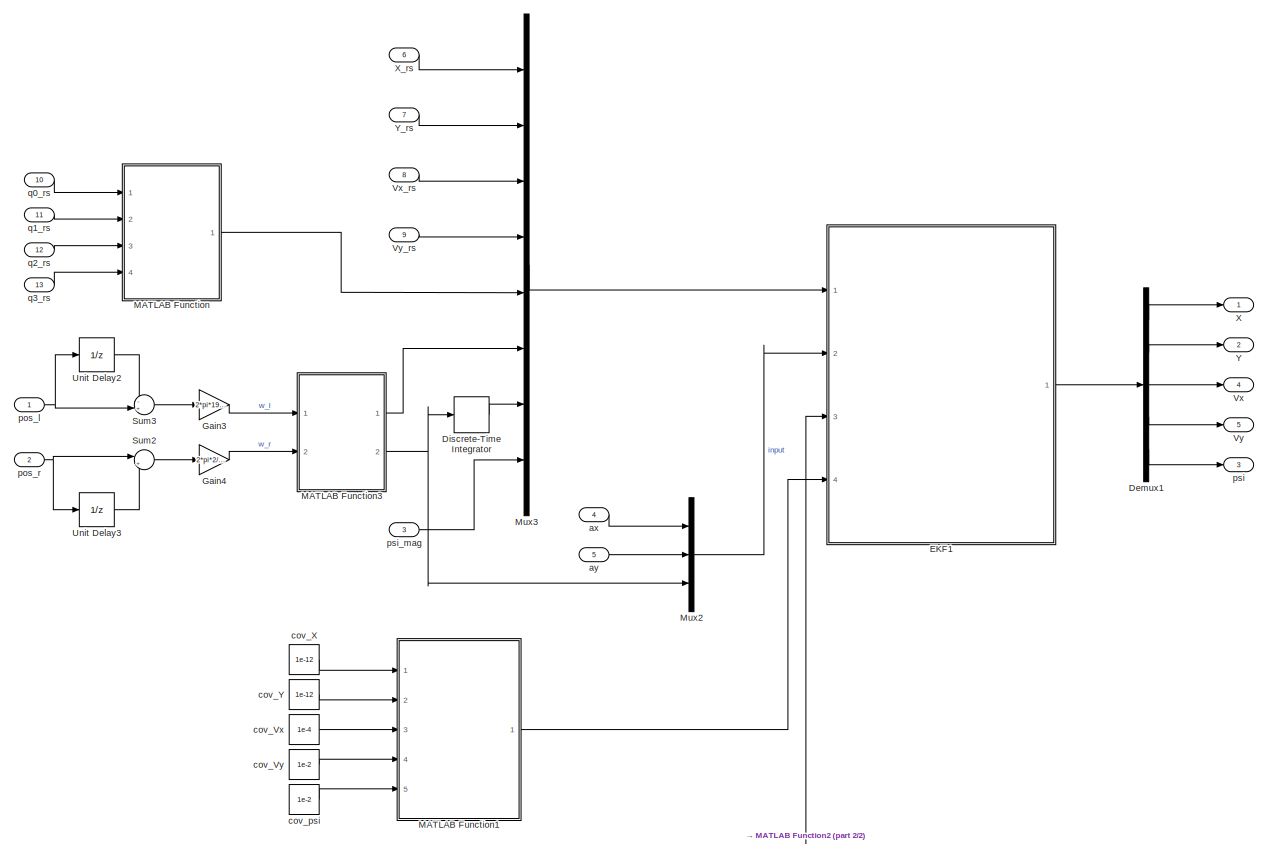
[diagram: root canvas - part 1/2, full width, middle band]
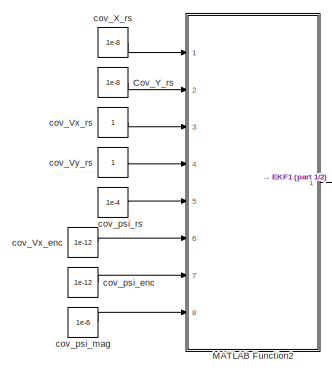
[diagram: root canvas - part 2/2, bottom center region]
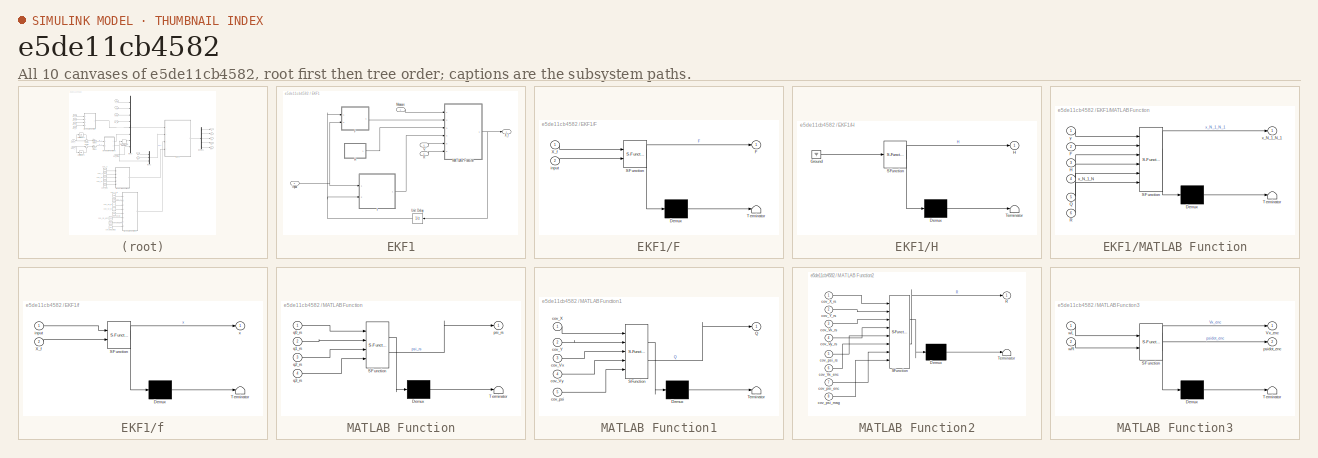
[diagram: thumbnail index - all 10 canvases of the model, root first then tree order]
MODEL slx_e5de11cb4582
KIND model
CONFIG AbsTol = auto
CONFIG EnableMultiTasking = on
CONFIG FixedStep = 0.2
CONFIG MaxStep = auto
CONFIG MinStep = auto
CONFIG RelTol = 1e-3
CONFIG SampleTimeConstraint = Unconstrained
CONFIG Solver = FixedStepDiscrete
CONFIG SolverName = FixedStepDiscrete
CONFIG StartTime = 0.0
CONFIG StopTime = 10.0
BLOCK [Constant] Cov_Y_rs
  Value = 1e-8
BLOCK [Demux] Demux1
  DisplayOption = bar
  Outputs = 5
  Ports = [1, 5]
BLOCK [DiscreteIntegrator] Discrete-Time Integrator
  ICPrevOutput = DiscIntNeverNeededParam
  ICPrevScaledInput = DiscIntNeverNeededParam
  InitialConditionSetting = Auto
  IntegratorMethod = Integration: Backward Euler
  Ports = [1, 1]
  SampleTime = -1
BLOCK [SubSystem] EKF1
  Ports = [4, 1]
  RequestExecContextInheritance = off
BLOCK [SubSystem] EKF1/F
  ErrorFcn = Stateflow.Translate.translate
  PermitHierarchicalResolution = ExplicitOnly
  Ports = [2, 1]
  RequestExecContextInheritance = off
  SFBlockType = MATLAB Function
  TreatAsAtomicUnit = on
BLOCK [Demux] EKF1/F/ Demux 
  DisplayOption = bar
  Outputs = 1
  Ports = [1, 1]
BLOCK [S-Function] EKF1/F/ SFunction 
  EnableBusSupport = on
  FunctionName = sf_sfun
  PortCounts = [2 2]
  Ports = [2, 2]
  SFcnIsStateOwnerBlock = off
  SFunctionDeploymentMode = off
  Tag = Stateflow S-Function Kalman_filter_conv 4
BLOCK [Terminator] EKF1/F/ Terminator 
BLOCK [Outport] EKF1/F/F
  IconDisplay = Port number
  VectorParamsAs1DForOutWhenUnconnected = on
BLOCK [Inport] EKF1/F/X_f
  IconDisplay = Port number
BLOCK [Inport] EKF1/F/input
  IconDisplay = Port number
  Port = 2
BLOCK [SubSystem] EKF1/H
  ErrorFcn = Stateflow.Translate.translate
  PermitHierarchicalResolution = ExplicitOnly
  Ports = [0, 1]
  RequestExecContextInheritance = off
  SFBlockType = MATLAB Function
  TreatAsAtomicUnit = on
BLOCK [Demux] EKF1/H/ Demux 
  DisplayOption = bar
  Outputs = 1
  Ports = [1, 1]
BLOCK [Ground] EKF1/H/ Ground 
BLOCK [S-Function] EKF1/H/ SFunction 
  EnableBusSupport = on
  FunctionName = sf_sfun
  PortCounts = [1 2]
  Ports = [1, 2]
  SFcnIsStateOwnerBlock = off
  SFunctionDeploymentMode = off
  Tag = Stateflow S-Function Kalman_filter_conv 5
BLOCK [Terminator] EKF1/H/ Terminator 
BLOCK [Outport] EKF1/H/H
  IconDisplay = Port number
  VectorParamsAs1DForOutWhenUnconnected = on
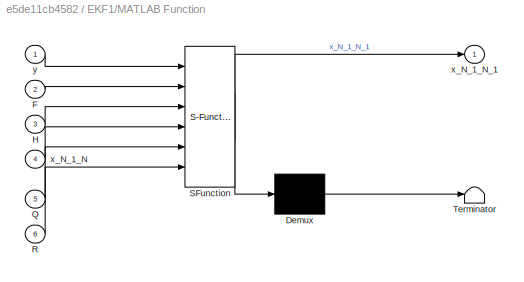
BLOCK [SubSystem] EKF1/MATLAB Function
  ErrorFcn = Stateflow.Translate.translate
  PermitHierarchicalResolution = ExplicitOnly
  Ports = [6, 1]
  RequestExecContextInheritance = off
  SFBlockType = MATLAB Function
  TreatAsAtomicUnit = on
BLOCK [Demux] EKF1/MATLAB Function/ Demux 
  DisplayOption = bar
  Outputs = 1
  Ports = [1, 1]
BLOCK [S-Function] EKF1/MATLAB Function/ SFunction 
  EnableBusSupport = on
  FunctionName = sf_sfun
  PortCounts = [6 2]
  Ports = [6, 2]
  SFcnIsStateOwnerBlock = off
  SFunctionDeploymentMode = off
  Tag = Stateflow S-Function Kalman_filter_conv 6
BLOCK [Terminator] EKF1/MATLAB Function/ Terminator 
BLOCK [Inport] EKF1/MATLAB Function/F
  IconDisplay = Port number
  Port = 2
BLOCK [Inport] EKF1/MATLAB Function/H
  IconDisplay = Port number
  Port = 3
BLOCK [Inport] EKF1/MATLAB Function/Q
  IconDisplay = Port number
  Port = 5
BLOCK [Inport] EKF1/MATLAB Function/R
  IconDisplay = Port number
  Port = 6
BLOCK [Inport] EKF1/MATLAB Function/x_N_1_N
  IconDisplay = Port number
  Port = 4
BLOCK [Outport] EKF1/MATLAB Function/x_N_1_N_1
  IconDisplay = Port number
  VectorParamsAs1DForOutWhenUnconnected = on
BLOCK [Inport] EKF1/MATLAB Function/y
  IconDisplay = Port number
BLOCK [Inport] EKF1/Measure
  IconDisplay = Port number
BLOCK [Inport] EKF1/Q
  IconDisplay = Port number
  Port = 4
BLOCK [Inport] EKF1/R
  IconDisplay = Port number
  Port = 3
BLOCK [UnitDelay] EKF1/Unit Delay
  HasFrameUpgradeWarning = on
  InitialCondition = [0 0 0 0 0]
  SampleTime = -1
BLOCK [Outport] EKF1/X_f
  IconDisplay = Port number
  VectorParamsAs1DForOutWhenUnconnected = on
BLOCK [SubSystem] EKF1/f
  ErrorFcn = Stateflow.Translate.translate
  PermitHierarchicalResolution = ExplicitOnly
  Ports = [2, 1]
  RequestExecContextInheritance = off
  SFBlockType = MATLAB Function
  TreatAsAtomicUnit = on
BLOCK [Demux] EKF1/f/ Demux 
  DisplayOption = bar
  Outputs = 1
  Ports = [1, 1]
BLOCK [S-Function] EKF1/f/ SFunction 
  EnableBusSupport = on
  FunctionName = sf_sfun
  PortCounts = [2 2]
  Ports = [2, 2]
  SFcnIsStateOwnerBlock = off
  SFunctionDeploymentMode = off
  Tag = Stateflow S-Function Kalman_filter_conv 7
BLOCK [Terminator] EKF1/f/ Terminator 
BLOCK [Inport] EKF1/f/X_f
  IconDisplay = Port number
  Port = 2
BLOCK [Inport] EKF1/f/input
  IconDisplay = Port number
BLOCK [Outport] EKF1/f/x
  IconDisplay = Port number
  VectorParamsAs1DForOutWhenUnconnected = on
BLOCK [Inport] EKF1/input
  IconDisplay = Port number
  Port = 2
BLOCK [Gain] Gain3
  Gain = 2*pi*1920*2/360/1920/0.2
  OutDataTypeStr = Inherit: Inherit via internal rule
  ParamDataTypeStr = Inherit: Inherit via internal rule
  SaturateOnIntegerOverflow = off
BLOCK [Gain] Gain4
  Gain = 2*pi*2/360/0.2
  OutDataTypeStr = Inherit: Inherit via internal rule
  ParamDataTypeStr = Inherit: Inherit via internal rule
  SaturateOnIntegerOverflow = off
BLOCK [SubSystem] MATLAB Function
  ErrorFcn = Stateflow.Translate.translate
  PermitHierarchicalResolution = ExplicitOnly
  Ports = [4, 1]
  RequestExecContextInheritance = off
  SFBlockType = MATLAB Function
  TreatAsAtomicUnit = on
BLOCK [Demux] MATLAB Function/ Demux 
  DisplayOption = bar
  Outputs = 1
  Ports = [1, 1]
BLOCK [S-Function] MATLAB Function/ SFunction 
  EnableBusSupport = on
  FunctionName = sf_sfun
  PortCounts = [4 2]
  Ports = [4, 2]
  SFcnIsStateOwnerBlock = off
  SFunctionDeploymentMode = off
  Tag = Stateflow S-Function Kalman_filter_conv 2
BLOCK [Terminator] MATLAB Function/ Terminator 
BLOCK [Outport] MATLAB Function/psi_rs
  IconDisplay = Port number
  VectorParamsAs1DForOutWhenUnconnected = on
BLOCK [Inport] MATLAB Function/q0_rs
  IconDisplay = Port number
BLOCK [Inport] MATLAB Function/q1_rs
  IconDisplay = Port number
  Port = 2
BLOCK [Inport] MATLAB Function/q2_rs
  IconDisplay = Port number
  Port = 3
BLOCK [Inport] MATLAB Function/q3_rs
  IconDisplay = Port number
  Port = 4
BLOCK [SubSystem] MATLAB Function1
  ErrorFcn = Stateflow.Translate.translate
  PermitHierarchicalResolution = ExplicitOnly
  Ports = [5, 1]
  RequestExecContextInheritance = off
  SFBlockType = MATLAB Function
  TreatAsAtomicUnit = on
BLOCK [Demux] MATLAB Function1/ Demux 
  DisplayOption = bar
  Outputs = 1
  Ports = [1, 1]
BLOCK [S-Function] MATLAB Function1/ SFunction 
  EnableBusSupport = on
  FunctionName = sf_sfun
  PortCounts = [5 2]
  Ports = [5, 2]
  SFcnIsStateOwnerBlock = off
  SFunctionDeploymentMode = off
  Tag = Stateflow S-Function Kalman_filter_conv 1
BLOCK [Terminator] MATLAB Function1/ Terminator 
BLOCK [Outport] MATLAB Function1/Q
  IconDisplay = Port number
  VectorParamsAs1DForOutWhenUnconnected = on
BLOCK [Inport] MATLAB Function1/cov_Vx
  IconDisplay = Port number
  Port = 3
BLOCK [Inport] MATLAB Function1/cov_Vy
  IconDisplay = Port number
  Port = 4
BLOCK [Inport] MATLAB Function1/cov_X
  IconDisplay = Port number
BLOCK [Inport] MATLAB Function1/cov_Y
  IconDisplay = Port number
  Port = 2
BLOCK [Inport] MATLAB Function1/cov_psi
  IconDisplay = Port number
  Port = 5
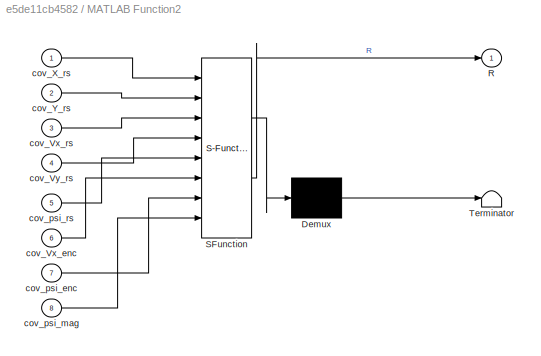
BLOCK [SubSystem] MATLAB Function2
  ErrorFcn = Stateflow.Translate.translate
  PermitHierarchicalResolution = ExplicitOnly
  Ports = [8, 1]
  RequestExecContextInheritance = off
  SFBlockType = MATLAB Function
  TreatAsAtomicUnit = on
BLOCK [Demux] MATLAB Function2/ Demux 
  DisplayOption = bar
  Outputs = 1
  Ports = [1, 1]
BLOCK [S-Function] MATLAB Function2/ SFunction 
  EnableBusSupport = on
  FunctionName = sf_sfun
  PortCounts = [8 2]
  Ports = [8, 2]
  SFcnIsStateOwnerBlock = off
  SFunctionDeploymentMode = off
  Tag = Stateflow S-Function Kalman_filter_conv 3
BLOCK [Terminator] MATLAB Function2/ Terminator 
BLOCK [Outport] MATLAB Function2/R
  IconDisplay = Port number
  VectorParamsAs1DForOutWhenUnconnected = on
BLOCK [Inport] MATLAB Function2/cov_Vx_enc
  IconDisplay = Port number
  Port = 6
BLOCK [Inport] MATLAB Function2/cov_Vx_rs
  IconDisplay = Port number
  Port = 3
BLOCK [Inport] MATLAB Function2/cov_Vy_rs
  IconDisplay = Port number
  Port = 4
BLOCK [Inport] MATLAB Function2/cov_X_rs
  IconDisplay = Port number
BLOCK [Inport] MATLAB Function2/cov_Y_rs
  IconDisplay = Port number
  Port = 2
BLOCK [Inport] MATLAB Function2/cov_psi_enc
  IconDisplay = Port number
  Port = 7
BLOCK [Inport] MATLAB Function2/cov_psi_mag
  IconDisplay = Port number
  Port = 8
BLOCK [Inport] MATLAB Function2/cov_psi_rs
  IconDisplay = Port number
  Port = 5
BLOCK [SubSystem] MATLAB Function3
  ErrorFcn = Stateflow.Translate.translate
  PermitHierarchicalResolution = ExplicitOnly
  Ports = [2, 2]
  RequestExecContextInheritance = off
  SFBlockType = MATLAB Function
  TreatAsAtomicUnit = on
BLOCK [Demux] MATLAB Function3/ Demux 
  DisplayOption = bar
  Outputs = 1
  Ports = [1, 1]
BLOCK [S-Function] MATLAB Function3/ SFunction 
  EnableBusSupport = on
  FunctionName = sf_sfun
  PortCounts = [2 3]
  Ports = [2, 3]
  SFcnIsStateOwnerBlock = off
  SFunctionDeploymentMode = off
  Tag = Stateflow S-Function Kalman_filter_conv 9
BLOCK [Terminator] MATLAB Function3/ Terminator 
BLOCK [Outport] MATLAB Function3/Vx_enc
  IconDisplay = Port number
  VectorParamsAs1DForOutWhenUnconnected = on
BLOCK [Outport] MATLAB Function3/psidot_enc
  IconDisplay = Port number
  Port = 2
  VectorParamsAs1DForOutWhenUnconnected = on
BLOCK [Inport] MATLAB Function3/wL
  IconDisplay = Port number
BLOCK [Inport] MATLAB Function3/wR
  IconDisplay = Port number
  Port = 2
BLOCK [Mux] Mux2
  DisplayOption = bar
  Inputs = 3
  Ports = [3, 1]
BLOCK [Mux] Mux3
  DisplayOption = bar
  Inputs = 8
  Ports = [8, 1]
BLOCK [Sum] Sum2
  IconShape = round
  InputSameDT = off
  Inputs = |+-
  OutDataTypeStr = Inherit: Inherit via internal rule
  Ports = [2, 1]
  SaturateOnIntegerOverflow = off
BLOCK [Sum] Sum3
  IconShape = round
  InputSameDT = off
  Inputs = -+|
  OutDataTypeStr = Inherit: Inherit via internal rule
  Ports = [2, 1]
  SaturateOnIntegerOverflow = off
BLOCK [UnitDelay] Unit Delay2
  HasFrameUpgradeWarning = on
  SampleTime = -1
BLOCK [UnitDelay] Unit Delay3
  HasFrameUpgradeWarning = on
  SampleTime = -1
BLOCK [Outport] Vx 
  IconDisplay = Port number
  Port = 4
  VectorParamsAs1DForOutWhenUnconnected = on
BLOCK [Inport] Vx_rs
  IconDisplay = Port number
  Port = 8
BLOCK [Outport] Vy 
  IconDisplay = Port number
  Port = 5
  VectorParamsAs1DForOutWhenUnconnected = on
BLOCK [Inport] Vy_rs
  IconDisplay = Port number
  Port = 9
BLOCK [Outport] X
  IconDisplay = Port number
  VectorParamsAs1DForOutWhenUnconnected = on
BLOCK [Inport] X_rs
  IconDisplay = Port number
  Port = 6
BLOCK [Outport] Y
  IconDisplay = Port number
  Port = 2
  VectorParamsAs1DForOutWhenUnconnected = on
BLOCK [Inport] Y_rs
  IconDisplay = Port number
  Port = 7
BLOCK [Inport] ax
  IconDisplay = Port number
  Port = 4
BLOCK [Inport] ay
  IconDisplay = Port number
  Port = 5
BLOCK [Constant] cov_Vx
  Value = 1e-4
BLOCK [Constant] cov_Vx_enc
  Value = 1e-12
BLOCK [Constant] cov_Vx_rs
BLOCK [Constant] cov_Vy
  Value = 1e-2
BLOCK [Constant] cov_Vy_rs
BLOCK [Constant] cov_X
  Value = 1e-12
BLOCK [Constant] cov_X_rs
  Value = 1e-8
BLOCK [Constant] cov_Y
  Value = 1e-12
BLOCK [Constant] cov_psi
  Value = 1e-2
BLOCK [Constant] cov_psi_enc
  Value = 1e-12
BLOCK [Constant] cov_psi_mag
  Value = 1e-6
BLOCK [Constant] cov_psi_rs
  Value = 1e-4
BLOCK [Inport] pos_l
  IconDisplay = Port number
BLOCK [Inport] pos_r
  IconDisplay = Port number
  Port = 2
BLOCK [Outport] psi 
  IconDisplay = Port number
  Port = 3
  VectorParamsAs1DForOutWhenUnconnected = on
BLOCK [Inport] psi_mag
  IconDisplay = Port number
  Port = 3
BLOCK [Inport] q0_rs
  IconDisplay = Port number
  Port = 10
BLOCK [Inport] q1_rs
  IconDisplay = Port number
  Port = 11
BLOCK [Inport] q2_rs
  IconDisplay = Port number
  Port = 12
BLOCK [Inport] q3_rs
  IconDisplay = Port number
  Port = 13
LINE Cov_Y_rs:1 -> MATLAB Function2:2
LINE Demux1:1 -> X:1
LINE Demux1:2 -> Y:1
LINE Demux1:3 -> Vx :1
LINE Demux1:4 -> Vy :1
LINE Demux1:5 -> psi :1
LINE Discrete-Time Integrator:1 -> Mux3:7
LINE EKF1/F:1 -> EKF1/MATLAB Function:2
LINE EKF1/H:1 -> EKF1/MATLAB Function:3
NET EKF1/MATLAB Function:1 -> EKF1/Unit Delay:1, EKF1/X_f:1
LINE EKF1/Measure:1 -> EKF1/MATLAB Function:1
LINE EKF1/Q:1 -> EKF1/MATLAB Function:5
LINE EKF1/R:1 -> EKF1/MATLAB Function:6
NET EKF1/Unit Delay:1 -> EKF1/F:1, EKF1/f:2
LINE EKF1/f:1 -> EKF1/MATLAB Function:4
NET EKF1/input:1 -> EKF1/F:2, EKF1/f:1
LINE EKF1:1 -> Demux1:1
LINE Gain3:1 -> MATLAB Function3:1
LINE Gain4:1 -> MATLAB Function3:2
LINE MATLAB Function1:1 -> EKF1:4
LINE MATLAB Function2:1 -> EKF1:3
LINE MATLAB Function3:1 -> Mux3:6
NET MATLAB Function3:2 -> Discrete-Time Integrator:1, Mux2:3
LINE MATLAB Function:1 -> Mux3:5
LINE Mux2:1 -> EKF1:2
LINE Mux3:1 -> EKF1:1
LINE Sum2:1 -> Gain4:1
LINE Sum3:1 -> Gain3:1
LINE Unit Delay2:1 -> Sum3:1
LINE Unit Delay3:1 -> Sum2:2
LINE Vx_rs:1 -> Mux3:3
LINE Vy_rs:1 -> Mux3:4
LINE X_rs:1 -> Mux3:1
LINE Y_rs:1 -> Mux3:2
LINE ax:1 -> Mux2:1
LINE ay:1 -> Mux2:2
LINE cov_Vx:1 -> MATLAB Function1:3
LINE cov_Vx_enc:1 -> MATLAB Function2:6
LINE cov_Vx_rs:1 -> MATLAB Function2:3
LINE cov_Vy:1 -> MATLAB Function1:4
LINE cov_Vy_rs:1 -> MATLAB Function2:4
LINE cov_X:1 -> MATLAB Function1:1
LINE cov_X_rs:1 -> MATLAB Function2:1
LINE cov_Y:1 -> MATLAB Function1:2
LINE cov_psi:1 -> MATLAB Function1:5
LINE cov_psi_enc:1 -> MATLAB Function2:7
LINE cov_psi_mag:1 -> MATLAB Function2:8
LINE cov_psi_rs:1 -> MATLAB Function2:5
NET pos_l:1 -> Sum3:2, Unit Delay2:1
NET pos_r:1 -> Sum2:1, Unit Delay3:1
LINE psi_mag:1 -> Mux3:8
LINE q0_rs:1 -> MATLAB Function:1
LINE q1_rs:1 -> MATLAB Function:2
LINE q2_rs:1 -> MATLAB Function:3
LINE q3_rs:1 -> MATLAB Function:4
note: NET lines group one-source signal fan-out (src -> all destinations, sorted); 1:1 wires keep LINE
CHART MATLAB Function1 states=1 transitions=1
  STATE_LABEL 'eML_blk_kernel()'
  STATE_LABEL 'SCRIPT:\nfunction Q = fcn(cov_X, cov_Y, cov_Vx, cov_Vy, cov_psi)\n\nQ=[cov_X    0     0       0         0;...\n    0     cov_Y   0       0         0;...\n    0       0    cov_Vx   0         0;...\n    0       0     0     cov_Vy      0;...\n    0       0     0       0      cov_psi];'
CHART MATLAB Function states=1 transitions=1
  STATE_LABEL 'eML_blk_kernel()'
  STATE_LABEL 'SCRIPT:\nfunction psi_rs = fcn(q0_rs, q1_rs, q2_rs, q3_rs)\n\npsi_rs= atan2(2*(q0_rs*q3_rs+q1_rs*q2_rs),1-2*(q2_rs^2+q3_rs^2));\n\n'
CHART MATLAB Function2 states=1 transitions=1
  STATE_LABEL 'eML_blk_kernel()'
  STATE_LABEL 'SCRIPT:\nfunction R = fcn(cov_X_rs, cov_Y_rs, cov_Vx_rs, cov_Vy_rs, cov_psi_rs, cov_Vx_enc, cov_psi_enc, cov_psi_mag)\n\n\n\n\n\n\nR=eye(8,8);\n\nR(1,1)=cov_X_rs;\nR(2,2)=cov_Y_rs;\nR(3,3)=cov_Vx_rs;\nR(4,4)=cov_Vy_rs;\nR(5,5)=cov_psi_rs;\nR(6,6)=cov_Vx_enc;\nR(7,7)=cov_psi_enc;\nR(8,8)=cov_psi_mag;'
CHART EKF1/F states=1 transitions=1
  STATE_LABEL 'eML_blk_kernel()'
  STATE_LABEL 'SCRIPT:\nfunction F = fcn(X_f,input)\n\nF=zeros(5,5);\nX=X_f(1);\nY=X_f(2);\nVx=X_f(3);\nVy=X_f(4);\npsi=X_f(5);\n\nomega=input(3);\n\ndt=0.2;\n\nF=[1 0 dt*cos(psi) dt*(-sin(psi)) (-Vx*sin(psi)-cos(psi)*Vy)*dt; ...\n   0 1 dt*sin(psi) dt*cos(psi) (cos(psi)*Vx-sin(psi)*Vy)*dt; ...\n   0 0 1 omega*dt 0; ...\n   0 0 -omega*dt 1 0; ...\n   0 0 0 0 1];\n\n'
CHART EKF1/H states=1 transitions=1
  STATE_LABEL 'eML_blk_kernel()'
  STATE_LABEL 'SCRIPT:\nfunction H = fcn()\n\nH=[1 0 0 0 0 ;...\n   0 1 0 0 0 ;...\n   0 0 1 0 0 ;...\n   0 0 0 1 0 ;...\n   0 0 0 0 1 ;...\n   0 0 1 0 0 ;...\n   0 0 0 0 1 ;...\n   0 0 0 0 1 ];\n'
CHART EKF1/MATLAB Function states=1 transitions=1
  STATE_LABEL 'eML_blk_kernel()'
  STATE_LABEL "SCRIPT:\nfunction x_N_1_N_1  = fcn(y, F, H, x_N_1_N, Q, R)\n\nx_N_1_N_1=zeros(5,1);\n\npersistent P_N_N\n\nif isempty(P_N_N)\n    P_N_N = eye(5);\nend\n\n% A priori estimation\nx_N_1_N;\n\n% A priori estimate error covariance matrix\nP_N_1_N = F*P_N_N*F' + Q; \n\n% Filter gain\nK = P_N_1_N*H'/(H*P_N_1_N*H' + R); \n\n% Innovation\nerr = y - H*x_N_1_N;  \n\n% Update of state estimation\nx_N_1_N_1 = x_N_1_N + K*err; \n\n% Upd...<+89ch>"
CHART EKF1/f states=1 transitions=1
  STATE_LABEL 'eML_blk_kernel()'
  STATE_LABEL "SCRIPT:\nfunction x = fcn(input, X_f)\ndt=0.2;\n\nX=X_f(1);\nY=X_f(2);\nVx=X_f(3);\nVy=X_f(4);\npsi=X_f(5);\n\nax=input(1);\nay=input(2);\nomega=input(3);\n\ndX= X+(cos(psi)*Vx-sin(psi)*Vy)*dt;\ndY= Y+(sin(psi)*Vx+cos(psi)*Vy)*dt;\ndVx=Vx+(ax+omega*Vy)*dt;\ndVy=Vy+(ay-omega*Vx)*dt;\ndpsi=omega*dt+psi;\n\n\nx=[dX, dY, dVx, dVy, dpsi]';"
CHART MATLAB Function3 states=1 transitions=1
  STATE_LABEL 'eML_blk_kernel()'
  STATE_LABEL 'SCRIPT:\nfunction [Vx_enc,psidot_enc] = fcn(wL,wR)\nr=0.043/2;\nB=0.185;\n\nVx_enc=r/2*(wR+wL);\npsidot_enc=r/B*(wR-wL);\n'
